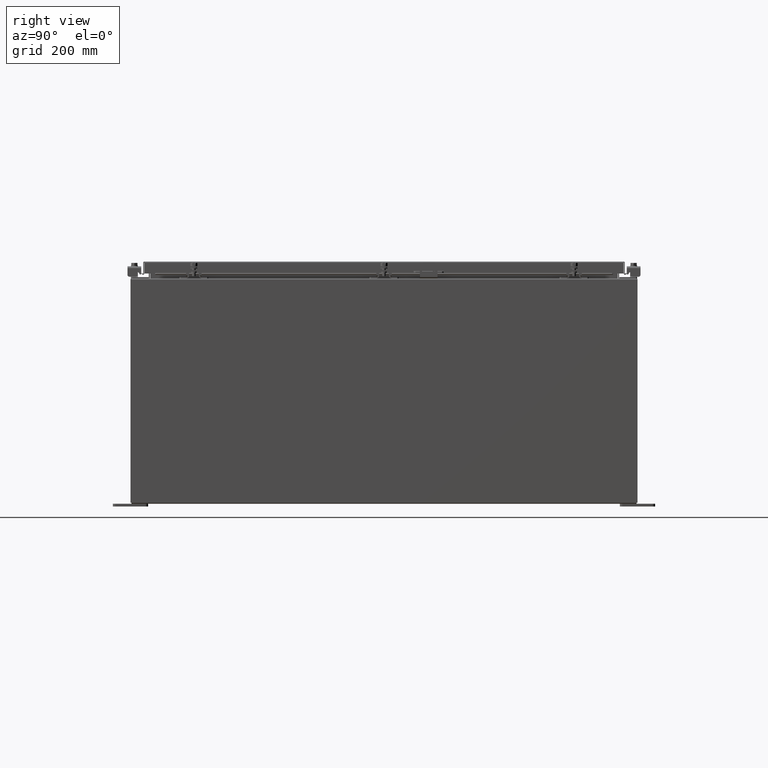
[diagram: clean part render]
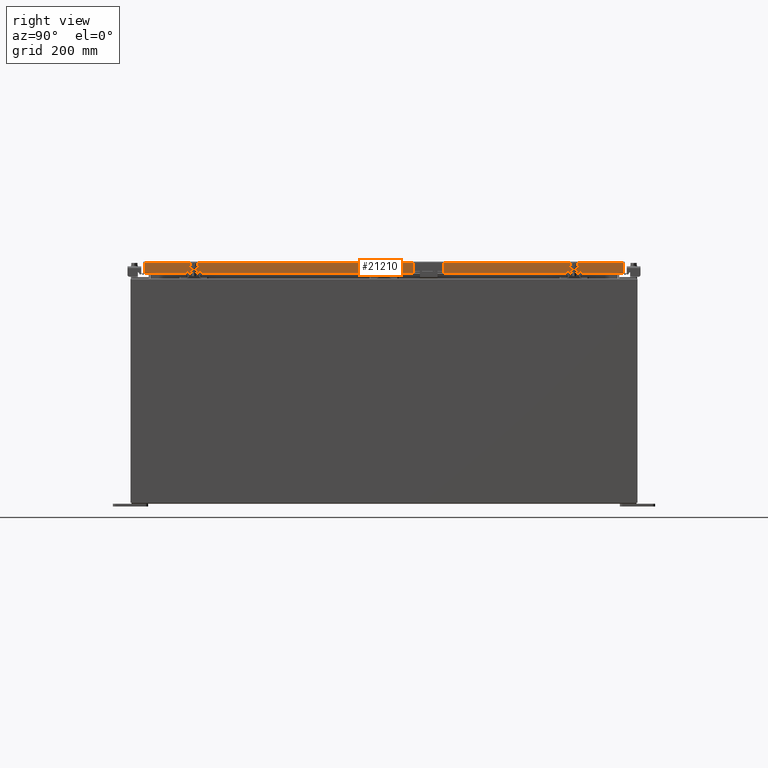
[diagram: same view with one face highlighted and labeled with its STEP entity id]
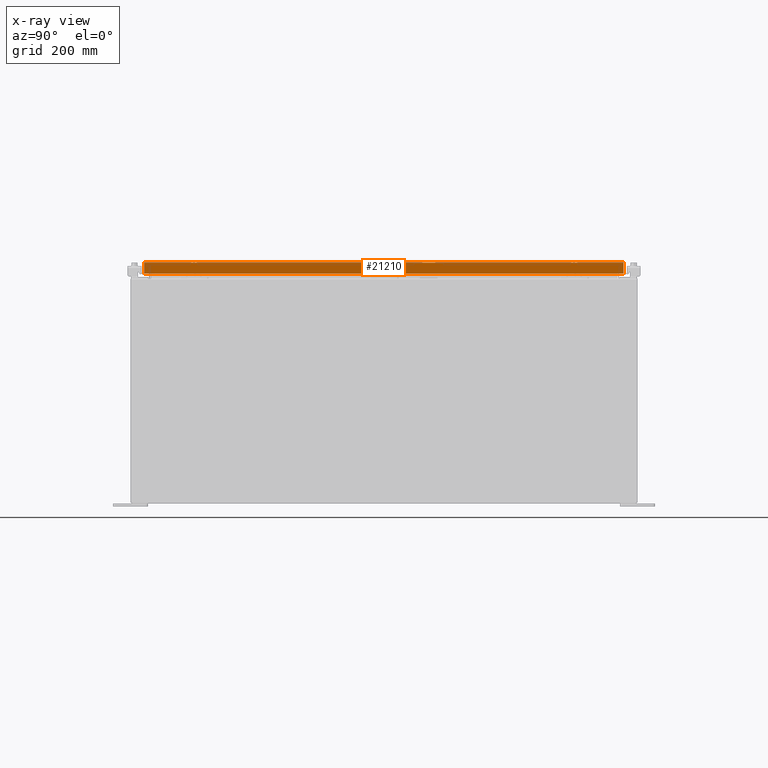
[diagram: x-ray of the same camera — body ghosted, the highlighted face saturated]
A machine part, right view. The second image highlights one B-rep face of the part: STEP entity #21210.
The next image is the same camera in x-ray: the body ghosted, the highlighted face saturated — about 0% of this face is hidden behind the body in this view.
In plain terms, the highlighted planar face has unit normal (1, 0, 0).
Its self-contained STEP definition (entity closure, byte-faithful):
#797 = EDGE_CURVE ( 'NONE', #24827, #4317, #37536, .T. ) ;
#2493 = DIRECTION ( 'NONE',  ( -2.818880942772360500E-015, -6.982962677686269100E-015, 1.000000000000000000 ) ) ;
#4317 = VERTEX_POINT ( 'NONE', #34723 ) ;
#5381 = VECTOR ( 'NONE', #11855, 39.37007874015748100 ) ;
#6033 = EDGE_LOOP ( 'NONE', ( #36541, #32693, #13232, #13026, #25430, #38307 ) ) ;
#6267 = EDGE_CURVE ( 'NONE', #23939, #23928, #25216, .T. ) ;
#6607 = CARTESIAN_POINT ( 'NONE',  ( 14.07799999999998700, -16.25515786437626500, -0.8500000000000016400 ) ) ;
#7483 = AXIS2_PLACEMENT_3D ( 'NONE', #26320, #37446, #20810 ) ;
#8819 = VECTOR ( 'NONE', #2493, 39.37007874015748100 ) ;
#9955 = EDGE_CURVE ( 'NONE', #38245, #23939, #13057, .T. ) ;
#11260 = VERTEX_POINT ( 'NONE', #31962 ) ;
#11439 = VECTOR ( 'NONE', #14790, 39.37007874015748100 ) ;
#11855 = DIRECTION ( 'NONE',  ( -2.818880942772360500E-015, -6.982962677686269100E-015, 1.000000000000000000 ) ) ;
#12458 = LINE ( 'NONE', #38142, #11439 ) ;
#13026 = ORIENTED_EDGE ( 'NONE', *, *, #24587, .F. ) ;
#13057 = LINE ( 'NONE', #28000, #39730 ) ;
#13232 = ORIENTED_EDGE ( 'NONE', *, *, #33923, .F. ) ;
#14790 = DIRECTION ( 'NONE',  ( 0.0000000000000000000, -1.000000000000000000, 0.0000000000000000000 ) ) ;
#15178 = PLANE ( 'NONE',  #7483 ) ;
#15517 = DIRECTION ( 'NONE',  ( 0.0000000000000000000, -1.000000000000000000, 0.0000000000000000000 ) ) ;
#17572 = LINE ( 'NONE', #32144, #24363 ) ;
#18539 = CARTESIAN_POINT ( 'NONE',  ( 14.07799999999999400, -17.00515786437626900, -0.07469999999999978000 ) ) ;
#19178 = DIRECTION ( 'NONE',  ( 0.0000000000000000000, -1.000000000000000000, 0.0000000000000000000 ) ) ;
#20810 = DIRECTION ( 'NONE',  ( 2.818880942772360100E-015, 0.0000000000000000000, -1.000000000000000000 ) ) ;
#21210 = ADVANCED_FACE ( 'NONE', ( #35618 ), #15178, .T. ) ;
#21899 = CARTESIAN_POINT ( 'NONE',  ( 14.07799999999999400, 17.00515786437627200, 1.586914022634635000E-013 ) ) ;
#22549 = CARTESIAN_POINT ( 'NONE',  ( 14.07799999999998700, 16.25515786437628000, -0.8500000000000016400 ) ) ;
#23852 = CARTESIAN_POINT ( 'NONE',  ( 14.07799999999999400, -17.00515786437626900, -0.08770000000000007000 ) ) ;
#23928 = VERTEX_POINT ( 'NONE', #23852 ) ;
#23939 = VERTEX_POINT ( 'NONE', #40553 ) ;
#24363 = VECTOR ( 'NONE', #15517, 39.37007874015748100 ) ;
#24587 = EDGE_CURVE ( 'NONE', #24827, #11260, #12458, .T. ) ;
#24815 = DIRECTION ( 'NONE',  ( 0.0000000000000000000, -1.000000000000000000, 0.0000000000000000000 ) ) ;
#24827 = VERTEX_POINT ( 'NONE', #26096 ) ;
#25216 = LINE ( 'NONE', #18539, #5381 ) ;
#25430 = ORIENTED_EDGE ( 'NONE', *, *, #797, .T. ) ;
#26096 = CARTESIAN_POINT ( 'NONE',  ( 14.07799999999999600, 17.00515786437627600, -0.8499999999999996400 ) ) ;
#26320 = CARTESIAN_POINT ( 'NONE',  ( 14.07799999999999400, 0.0000000000000000000, 3.994501956836084300E-014 ) ) ;
#28000 = CARTESIAN_POINT ( 'NONE',  ( 14.07799999999999600, -17.09400000000000100, -0.8499999999999996400 ) ) ;
#31962 = CARTESIAN_POINT ( 'NONE',  ( 14.07799999999998700, 16.25515786437627600, -0.8500000000000016400 ) ) ;
#32144 = CARTESIAN_POINT ( 'NONE',  ( 14.07799999999999400, 0.0000000000000000000, -0.08770000000000007000 ) ) ;
#32693 = ORIENTED_EDGE ( 'NONE', *, *, #9955, .F. ) ;
#33892 = VECTOR ( 'NONE', #19178, 39.37007874015748100 ) ;
#33923 = EDGE_CURVE ( 'NONE', #11260, #38245, #42778, .T. ) ;
#34723 = CARTESIAN_POINT ( 'NONE',  ( 14.07799999999999400, 17.00515786437626900, -0.08770000000000007000 ) ) ;
#35618 = FACE_OUTER_BOUND ( 'NONE', #6033, .T. ) ;
#36541 = ORIENTED_EDGE ( 'NONE', *, *, #6267, .F. ) ;
#36775 = EDGE_CURVE ( 'NONE', #4317, #23928, #17572, .T. ) ;
#37446 = DIRECTION ( 'NONE',  ( 1.000000000000000000, 0.0000000000000000000, 2.818880942772360100E-015 ) ) ;
#37536 = LINE ( 'NONE', #21899, #8819 ) ;
#38142 = CARTESIAN_POINT ( 'NONE',  ( 14.07799999999999600, -17.09400000000000100, -0.8499999999999996400 ) ) ;
#38245 = VERTEX_POINT ( 'NONE', #6607 ) ;
#38307 = ORIENTED_EDGE ( 'NONE', *, *, #36775, .T. ) ;
#39730 = VECTOR ( 'NONE', #24815, 39.37007874015748100 ) ;
#40553 = CARTESIAN_POINT ( 'NONE',  ( 14.07799999999999600, -17.00515786437626500, -0.8499999999999996400 ) ) ;
#42778 = LINE ( 'NONE', #22549, #33892 ) ;